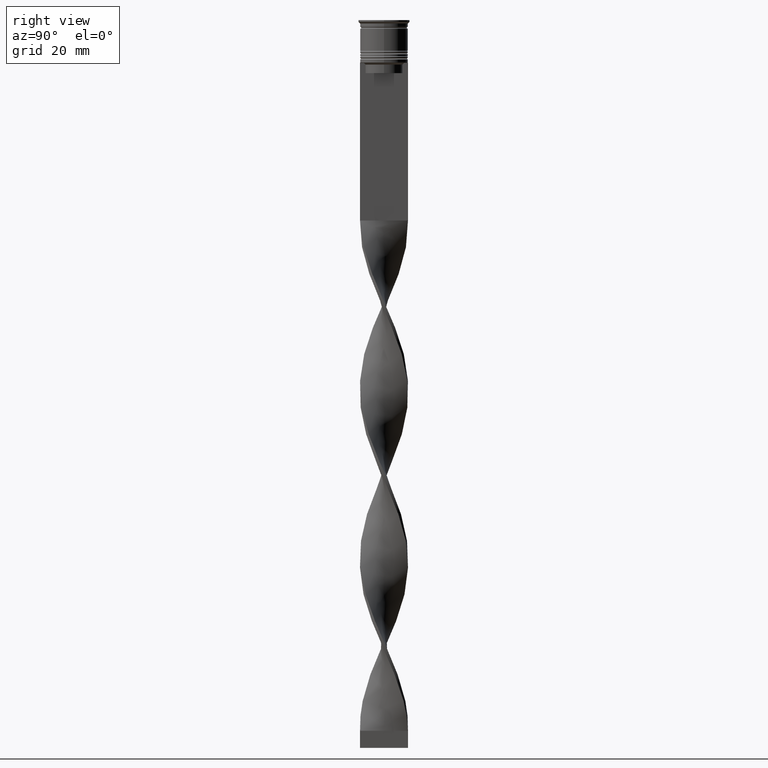
[diagram: clean part render]
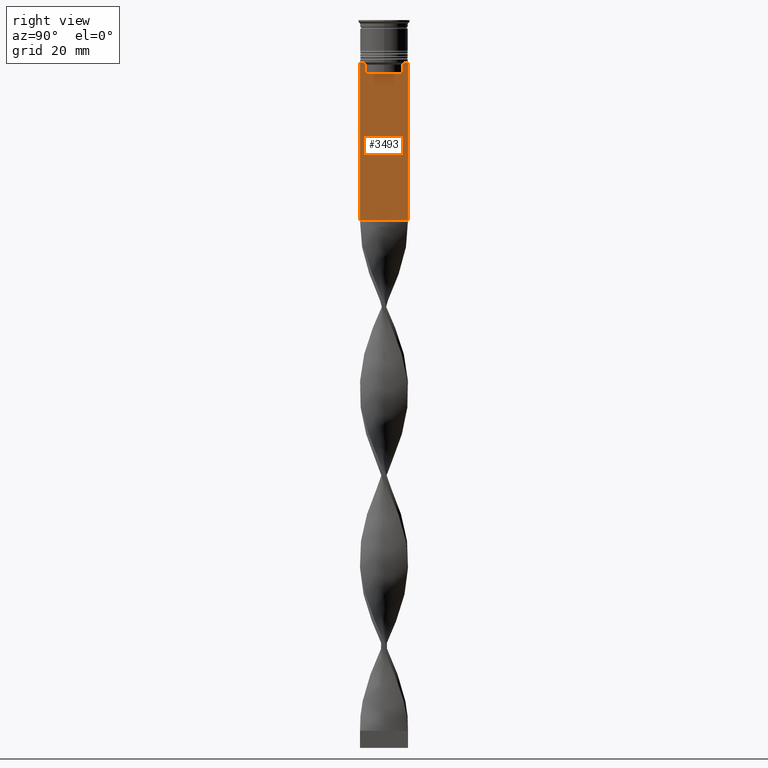
[diagram: same view with one face highlighted and labeled with its STEP entity id]
A machine part, right view. The second image highlights one B-rep face of the part: STEP entity #3493.
In plain terms, the highlighted planar face has unit normal (-1, 0, 0).
Its self-contained STEP definition (entity closure, byte-faithful):
#164 = EDGE_CURVE ( 'NONE', #3346, #980, #3352, .T. ) ;
#191 = VECTOR ( 'NONE', #972, 1000.000000000000000 ) ;
#238 = ORIENTED_EDGE ( 'NONE', *, *, #1921, .F. ) ;
#249 = DIRECTION ( 'NONE',  ( 0.000000000000000000, 1.000000000000000000, 0.000000000000000000 ) ) ;
#295 = FACE_OUTER_BOUND ( 'NONE', #749, .T. ) ;
#337 = VERTEX_POINT ( 'NONE', #2422 ) ;
#357 = CARTESIAN_POINT ( 'NONE',  ( 0.5000000000000000000, 5.376802023508029826, 0.000000000000000000 ) ) ;
#361 = DIRECTION ( 'NONE',  ( -0.000000000000000000, -0.000000000000000000, 1.000000000000000000 ) ) ;
#366 = LINE ( 'NONE', #3662, #191 ) ;
#505 = VECTOR ( 'NONE', #2046, 1000.000000000000000 ) ;
#540 = VERTEX_POINT ( 'NONE', #2767 ) ;
#548 = CARTESIAN_POINT ( 'NONE',  ( 0.5000000000000000000, -5.878775382679629402, -12.50000000000000000 ) ) ;
#589 = CARTESIAN_POINT ( 'NONE',  ( 0.5000000000000000000, -6.999999999999997335, -58.50000000000000000 ) ) ;
#613 = EDGE_CURVE ( 'NONE', #1543, #3346, #2615, .T. ) ;
#704 = CARTESIAN_POINT ( 'NONE',  ( 0.5000000000000000000, -5.376802023508029826, -15.50000000000000000 ) ) ;
#714 = VECTOR ( 'NONE', #249, 1000.000000000000000 ) ;
#724 = VECTOR ( 'NONE', #3410, 1000.000000000000000 ) ;
#749 = EDGE_LOOP ( 'NONE', ( #3754, #1413, #995, #2345, #1287, #3668, #1155, #2764, #1696, #1458, #238, #1149 ) ) ;
#778 = VECTOR ( 'NONE', #1868, 1000.000000000000000 ) ;
#799 = VERTEX_POINT ( 'NONE', #704 ) ;
#812 = VERTEX_POINT ( 'NONE', #3382 ) ;
#921 = CARTESIAN_POINT ( 'NONE',  ( 0.5000000000000000000, -6.881860213634102053, -12.50000000000000000 ) ) ;
#967 = PLANE ( 'NONE',  #2722 ) ;
#972 = DIRECTION ( 'NONE',  ( 0.000000000000000000, -1.000000000000000000, 0.000000000000000000 ) ) ;
#980 = VERTEX_POINT ( 'NONE', #921 ) ;
#985 = DIRECTION ( 'NONE',  ( 0.000000000000000000, 0.000000000000000000, 1.000000000000000000 ) ) ;
#995 = ORIENTED_EDGE ( 'NONE', *, *, #1216, .T. ) ;
#1025 = VECTOR ( 'NONE', #1324, 1000.000000000000000 ) ;
#1115 = CARTESIAN_POINT ( 'NONE',  ( 0.5000000000000000000, -6.999999999999997335, -58.50000000000000000 ) ) ;
#1144 = VECTOR ( 'NONE', #1463, 1000.000000000000000 ) ;
#1149 = ORIENTED_EDGE ( 'NONE', *, *, #2341, .T. ) ;
#1155 = ORIENTED_EDGE ( 'NONE', *, *, #164, .T. ) ;
#1216 = EDGE_CURVE ( 'NONE', #540, #2262, #3044, .T. ) ;
#1225 = CARTESIAN_POINT ( 'NONE',  ( 0.5000000000000000000, -5.376802023508029826, -13.00000000000000178 ) ) ;
#1258 = LINE ( 'NONE', #1803, #2197 ) ;
#1287 = ORIENTED_EDGE ( 'NONE', *, *, #3077, .T. ) ;
#1303 = B_SPLINE_CURVE_WITH_KNOTS ( 'NONE', 3,
 ( #2921, #3885, #3222, #1782 ),
 .UNSPECIFIED., .F., .F.,
 ( 4, 4 ),
 ( 0.01003009312103698807, 0.01073859663834952557 ),
 .UNSPECIFIED. ) ;
#1304 = CARTESIAN_POINT ( 'NONE',  ( 0.5000000000000000000, 5.400000000000003908, -15.50000000000000000 ) ) ;
#1324 = DIRECTION ( 'NONE',  ( 0.000000000000000000, -1.000000000000000000, 0.000000000000000000 ) ) ;
#1413 = ORIENTED_EDGE ( 'NONE', *, *, #3331, .T. ) ;
#1447 = CARTESIAN_POINT ( 'NONE',  ( 0.5000000000000000000, -5.376802023508029826, -13.00000000000000178 ) ) ;
#1458 = ORIENTED_EDGE ( 'NONE', *, *, #3658, .T. ) ;
#1463 = DIRECTION ( 'NONE',  ( 0.000000000000000000, -1.000000000000000000, 0.000000000000000000 ) ) ;
#1541 = CARTESIAN_POINT ( 'NONE',  ( 0.5000000000000000000, -6.999999999999997335, 1.535668847618198329 ) ) ;
#1543 = VERTEX_POINT ( 'NONE', #1447 ) ;
#1555 = DIRECTION ( 'NONE',  ( 0.000000000000000000, 0.000000000000000000, -1.000000000000000000 ) ) ;
#1696 = ORIENTED_EDGE ( 'NONE', *, *, #2308, .T. ) ;
#1775 = CARTESIAN_POINT ( 'NONE',  ( 0.5000000000000000000, 7.000000000000002665, -12.50000000000000000 ) ) ;
#1782 = CARTESIAN_POINT ( 'NONE',  ( 0.5000000000000000000, 5.376802023508029826, -13.00000000000000178 ) ) ;
#1803 = CARTESIAN_POINT ( 'NONE',  ( 0.5000000000000000000, -6.999999999999997335, -12.50000000000000000 ) ) ;
#1860 = LINE ( 'NONE', #3296, #1894 ) ;
#1868 = DIRECTION ( 'NONE',  ( 0.000000000000000000, -1.000000000000000000, 0.000000000000000000 ) ) ;
#1894 = VECTOR ( 'NONE', #361, 1000.000000000000000 ) ;
#1921 = EDGE_CURVE ( 'NONE', #3745, #2060, #2583, .T. ) ;
#2046 = DIRECTION ( 'NONE',  ( 0.000000000000000000, 0.000000000000000000, -1.000000000000000000 ) ) ;
#2047 = CARTESIAN_POINT ( 'NONE',  ( 0.5000000000000000000, -6.999999999999997335, -12.50000000000000000 ) ) ;
#2060 = VERTEX_POINT ( 'NONE', #2240 ) ;
#2082 = DIRECTION ( 'NONE',  ( -1.000000000000000000, 0.000000000000000000, 0.000000000000000000 ) ) ;
#2110 = CARTESIAN_POINT ( 'NONE',  ( 0.5000000000000000000, -5.544156999454441959, -12.83336396790503642 ) ) ;
#2160 = CARTESIAN_POINT ( 'NONE',  ( 0.5000000000000000000, -6.999999999999997335, -12.50000000000000000 ) ) ;
#2173 = DIRECTION ( 'NONE',  ( 0.000000000000000000, -1.000000000000000000, 0.000000000000000000 ) ) ;
#2197 = VECTOR ( 'NONE', #2173, 1000.000000000000000 ) ;
#2240 = CARTESIAN_POINT ( 'NONE',  ( 0.5000000000000000000, 7.000000000000002665, -58.50000000000000000 ) ) ;
#2262 = VERTEX_POINT ( 'NONE', #2325 ) ;
#2308 = EDGE_CURVE ( 'NONE', #337, #3258, #2350, .T. ) ;
#2325 = CARTESIAN_POINT ( 'NONE',  ( 0.5000000000000000000, 5.376802023508029826, -15.50000000000000000 ) ) ;
#2341 = EDGE_CURVE ( 'NONE', #3745, #812, #1258, .T. ) ;
#2345 = ORIENTED_EDGE ( 'NONE', *, *, #3128, .T. ) ;
#2350 = LINE ( 'NONE', #3558, #505 ) ;
#2422 = CARTESIAN_POINT ( 'NONE',  ( 0.5000000000000000000, -6.999999999999997335, -12.50000000000000000 ) ) ;
#2438 = CARTESIAN_POINT ( 'NONE',  ( 0.5000000000000000000, -5.711478856069293286, -12.66669469529570335 ) ) ;
#2510 = EDGE_CURVE ( 'NONE', #812, #3300, #366, .T. ) ;
#2583 = LINE ( 'NONE', #3116, #724 ) ;
#2615 = B_SPLINE_CURVE_WITH_KNOTS ( 'NONE', 3,
 ( #1225, #2110, #2438, #3646 ),
 .UNSPECIFIED., .F., .F.,
 ( 4, 4 ),
 ( 0.02539176325380714666, 0.02610162431828674801 ),
 .UNSPECIFIED. ) ;
#2722 = AXIS2_PLACEMENT_3D ( 'NONE', #1541, #2082, #985 ) ;
#2764 = ORIENTED_EDGE ( 'NONE', *, *, #3368, .T. ) ;
#2767 = CARTESIAN_POINT ( 'NONE',  ( 0.5000000000000000000, 5.376802023508029826, -13.00000000000000178 ) ) ;
#2921 = CARTESIAN_POINT ( 'NONE',  ( 0.5000000000000000000, 5.878775382679629402, -12.50000000000000000 ) ) ;
#3044 = LINE ( 'NONE', #357, #3102 ) ;
#3077 = EDGE_CURVE ( 'NONE', #799, #1543, #1860, .T. ) ;
#3102 = VECTOR ( 'NONE', #1555, 1000.000000000000000 ) ;
#3116 = CARTESIAN_POINT ( 'NONE',  ( 0.5000000000000000000, 7.000000000000002665, 1.535668847618198329 ) ) ;
#3128 = EDGE_CURVE ( 'NONE', #2262, #799, #3457, .T. ) ;
#3222 = CARTESIAN_POINT ( 'NONE',  ( 0.5000000000000000000, 5.544156989057553275, -12.83336397825725861 ) ) ;
#3258 = VERTEX_POINT ( 'NONE', #589 ) ;
#3296 = CARTESIAN_POINT ( 'NONE',  ( 0.5000000000000000000, -5.376802023508029826, 0.000000000000000000 ) ) ;
#3300 = VERTEX_POINT ( 'NONE', #3578 ) ;
#3331 = EDGE_CURVE ( 'NONE', #3300, #540, #1303, .T. ) ;
#3346 = VERTEX_POINT ( 'NONE', #548 ) ;
#3352 = LINE ( 'NONE', #2160, #778 ) ;
#3368 = EDGE_CURVE ( 'NONE', #980, #337, #3502, .T. ) ;
#3382 = CARTESIAN_POINT ( 'NONE',  ( 0.5000000000000000000, 6.881860213634102053, -12.50000000000000000 ) ) ;
#3410 = DIRECTION ( 'NONE',  ( 0.000000000000000000, 0.000000000000000000, -1.000000000000000000 ) ) ;
#3457 = LINE ( 'NONE', #1304, #1025 ) ;
#3493 = ADVANCED_FACE ( 'NONE', ( #295 ), #967, .F. ) ;
#3495 = LINE ( 'NONE', #1115, #714 ) ;
#3502 = LINE ( 'NONE', #2047, #1144 ) ;
#3558 = CARTESIAN_POINT ( 'NONE',  ( 0.5000000000000000000, -6.999999999999997335, 1.535668847618198329 ) ) ;
#3578 = CARTESIAN_POINT ( 'NONE',  ( 0.5000000000000000000, 5.878775382679629402, -12.50000000000000000 ) ) ;
#3646 = CARTESIAN_POINT ( 'NONE',  ( 0.5000000000000000000, -5.878775382679629402, -12.50000000000000000 ) ) ;
#3658 = EDGE_CURVE ( 'NONE', #3258, #2060, #3495, .T. ) ;
#3662 = CARTESIAN_POINT ( 'NONE',  ( 0.5000000000000000000, -6.999999999999997335, -12.50000000000000000 ) ) ;
#3668 = ORIENTED_EDGE ( 'NONE', *, *, #613, .T. ) ;
#3745 = VERTEX_POINT ( 'NONE', #1775 ) ;
#3754 = ORIENTED_EDGE ( 'NONE', *, *, #2510, .T. ) ;
#3885 = CARTESIAN_POINT ( 'NONE',  ( 0.5000000000000000000, 5.711478846560141598, -12.66669470477064685 ) ) ;